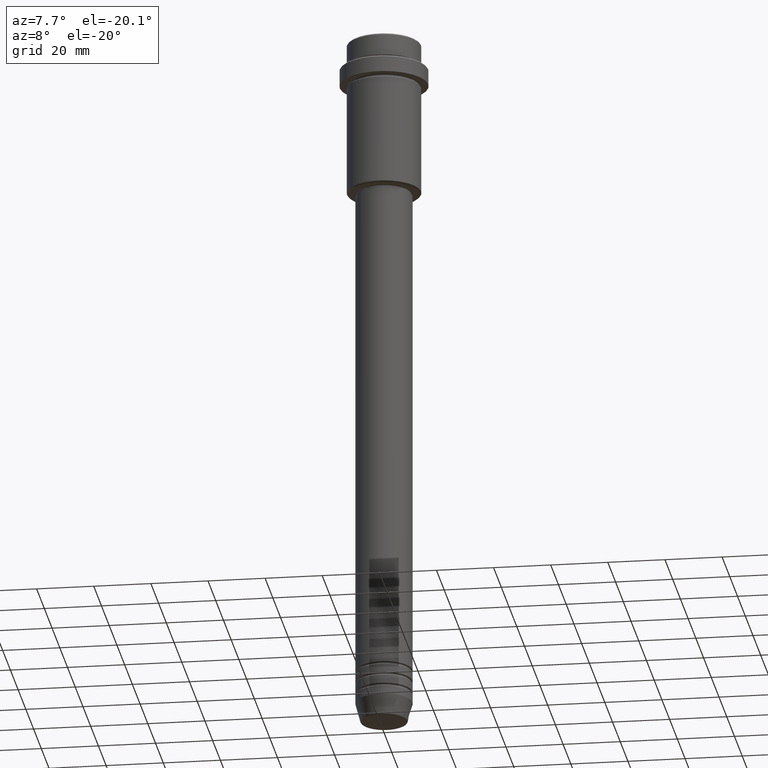
[diagram: clean part render]
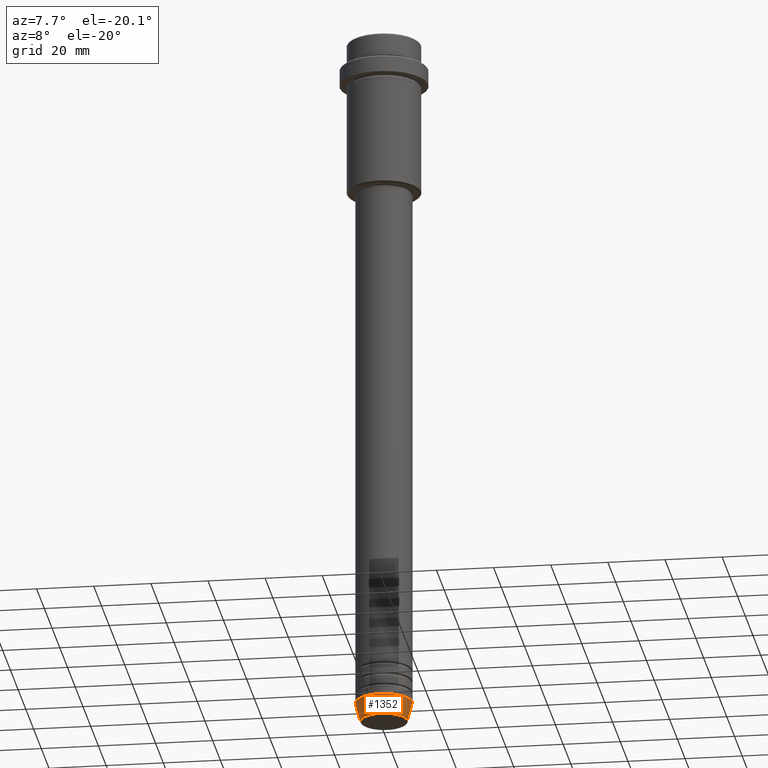
[diagram: same view with one face highlighted and labeled with its STEP entity id]
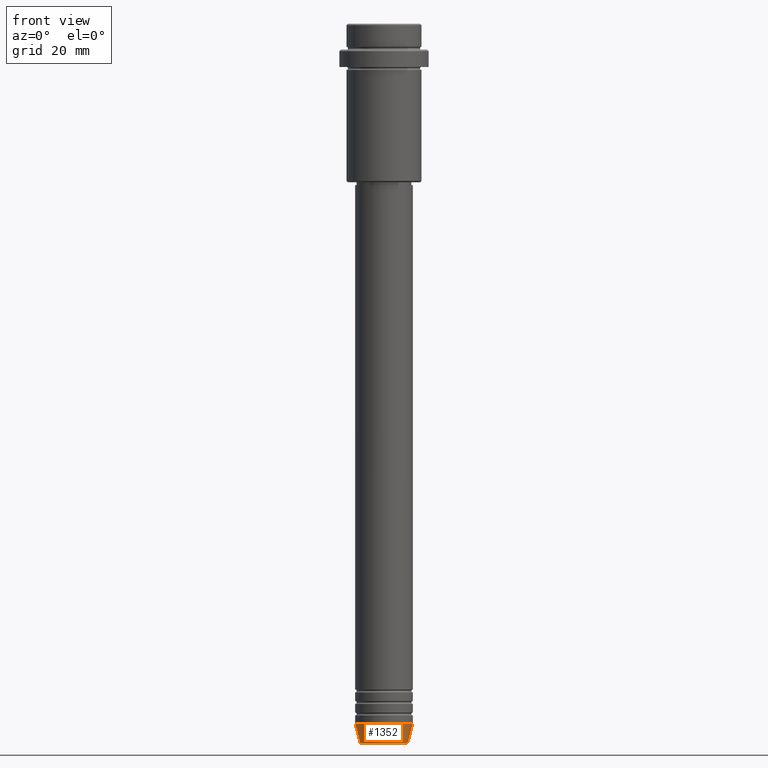
[diagram: same view with one face highlighted and labeled with its STEP entity id]
A machine part, auxiliary view. The second image highlights one B-rep face of the part: STEP entity #1352.
A second angle (front view) of the same face is appended — the face is thin or edge-on in the first view.
In plain terms, the highlighted conical surface has half-angle 15 deg.
Its self-contained STEP definition (entity closure, byte-faithful):
#25 = VERTEX_POINT ( 'NONE', #765 ) ;
#26 = VERTEX_POINT ( 'NONE', #749 ) ;
#87 = EDGE_CURVE ( 'NONE', #1260, #1162, #364, .T. ) ;
#108 = AXIS2_PLACEMENT_3D ( 'NONE', #296, #521, #723 ) ;
#123 = LINE ( 'NONE', #527, #667 ) ;
#196 = CARTESIAN_POINT ( 'NONE',  ( 10.00000000000000000, 0.000000000000000000, -243.0000000000000000 ) ) ;
#296 = CARTESIAN_POINT ( 'NONE',  ( 0.000000000000000000, 0.000000000000000000, -243.0000000000000000 ) ) ;
#364 = CIRCLE ( 'NONE', #1173, 10.00000000000000000 ) ;
#375 = ORIENTED_EDGE ( 'NONE', *, *, #1394, .F. ) ;
#494 = CARTESIAN_POINT ( 'NONE',  ( 0.000000000000000000, 0.000000000000000000, -243.0000000000000000 ) ) ;
#521 = DIRECTION ( 'NONE',  ( -0.000000000000000000, -0.000000000000000000, 1.000000000000000000 ) ) ;
#527 = CARTESIAN_POINT ( 'NONE',  ( 10.00000000000000000, 0.000000000000000000, -243.0000000000000000 ) ) ;
#578 = CIRCLE ( 'NONE', #922, 8.223655072137198374 ) ;
#583 = EDGE_CURVE ( 'NONE', #25, #1162, #123, .T. ) ;
#609 = CARTESIAN_POINT ( 'NONE',  ( -10.00000000000000000, 1.224646799147353256E-15, -243.0000000000000000 ) ) ;
#630 = LINE ( 'NONE', #1276, #671 ) ;
#667 = VECTOR ( 'NONE', #776, 1000.000000000000000 ) ;
#671 = VECTOR ( 'NONE', #951, 1000.000000000000000 ) ;
#723 = DIRECTION ( 'NONE',  ( 1.000000000000000000, 0.000000000000000000, 0.000000000000000000 ) ) ;
#734 = ORIENTED_EDGE ( 'NONE', *, *, #1077, .T. ) ;
#749 = CARTESIAN_POINT ( 'NONE',  ( -8.223655072137198374, 1.115877042642912645E-15, -249.6294095225512422 ) ) ;
#765 = CARTESIAN_POINT ( 'NONE',  ( 8.223655072137198374, 0.000000000000000000, -249.6294095225512422 ) ) ;
#776 = DIRECTION ( 'NONE',  ( 0.2588190451025213501, 0.000000000000000000, 0.9659258262890680902 ) ) ;
#823 = EDGE_LOOP ( 'NONE', ( #375, #734, #1048, #1046 ) ) ;
#860 = DIRECTION ( 'NONE',  ( -0.000000000000000000, -0.000000000000000000, 1.000000000000000000 ) ) ;
#885 = CONICAL_SURFACE ( 'NONE', #108, 10.00000000000000000, 0.2617993877991500740 ) ;
#922 = AXIS2_PLACEMENT_3D ( 'NONE', #990, #860, #1417 ) ;
#951 = DIRECTION ( 'NONE',  ( -0.2588190451025213501, 3.169619151431772337E-17, 0.9659258262890680902 ) ) ;
#972 = FACE_OUTER_BOUND ( 'NONE', #823, .T. ) ;
#990 = CARTESIAN_POINT ( 'NONE',  ( 0.000000000000000000, 0.000000000000000000, -249.6294095225512422 ) ) ;
#1046 = ORIENTED_EDGE ( 'NONE', *, *, #87, .F. ) ;
#1048 = ORIENTED_EDGE ( 'NONE', *, *, #583, .T. ) ;
#1059 = DIRECTION ( 'NONE',  ( 1.000000000000000000, 0.000000000000000000, 0.000000000000000000 ) ) ;
#1077 = EDGE_CURVE ( 'NONE', #26, #25, #578, .T. ) ;
#1149 = DIRECTION ( 'NONE',  ( -0.000000000000000000, -0.000000000000000000, 1.000000000000000000 ) ) ;
#1162 = VERTEX_POINT ( 'NONE', #196 ) ;
#1173 = AXIS2_PLACEMENT_3D ( 'NONE', #494, #1149, #1059 ) ;
#1260 = VERTEX_POINT ( 'NONE', #609 ) ;
#1276 = CARTESIAN_POINT ( 'NONE',  ( -10.00000000000000000, 1.224646799147353256E-15, -243.0000000000000000 ) ) ;
#1352 = ADVANCED_FACE ( 'NONE', ( #972 ), #885, .T. ) ;
#1394 = EDGE_CURVE ( 'NONE', #26, #1260, #630, .T. ) ;
#1417 = DIRECTION ( 'NONE',  ( 1.000000000000000000, 0.000000000000000000, 0.000000000000000000 ) ) ;